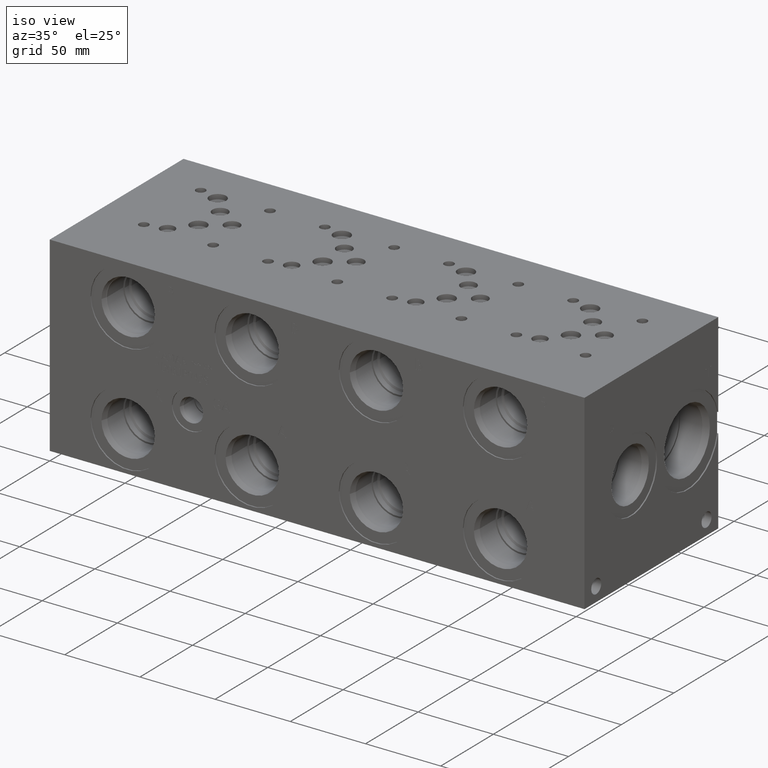
[diagram: clean part render]
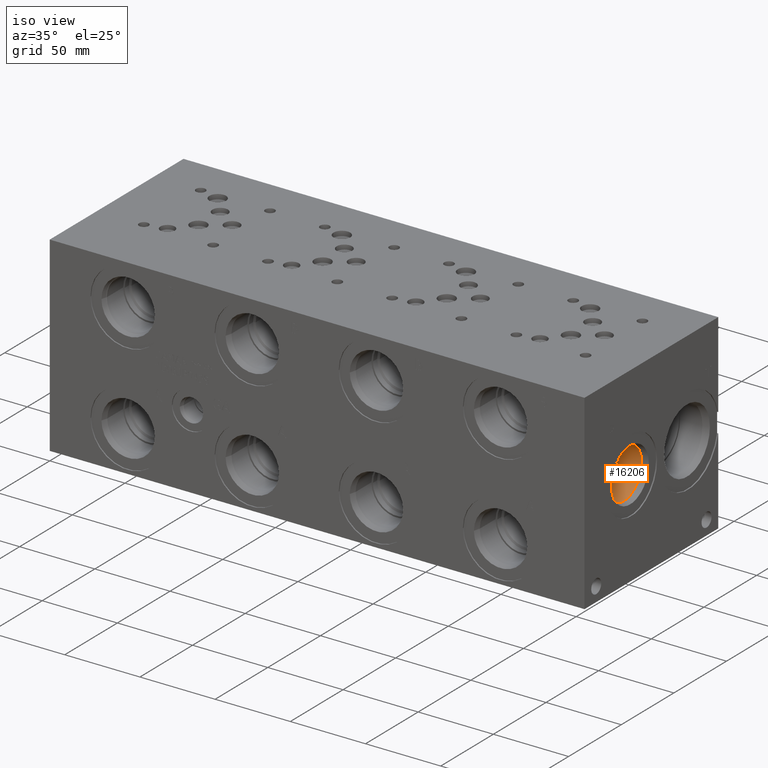
[diagram: same view with one face highlighted and labeled with its STEP entity id]
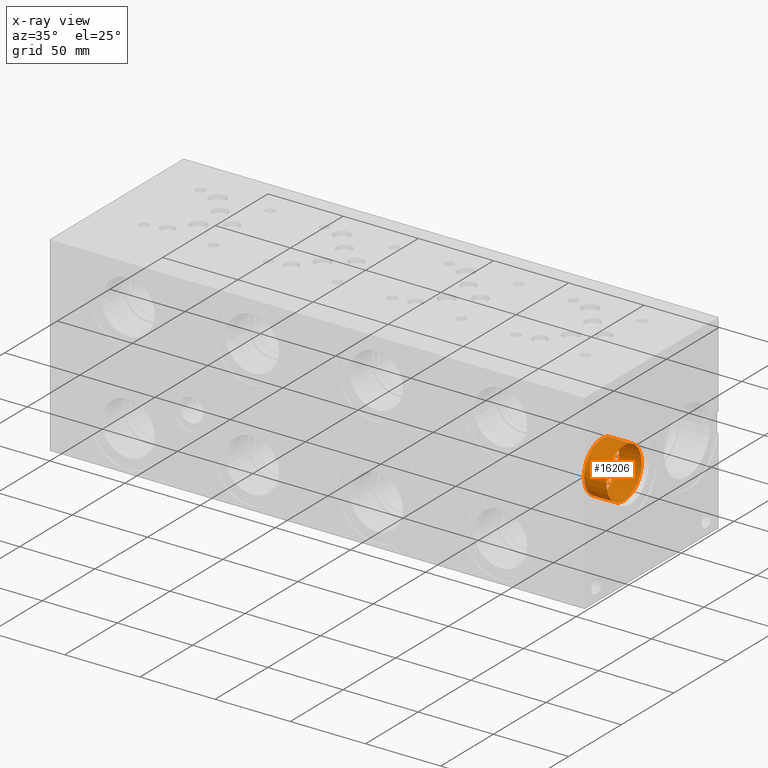
[diagram: x-ray of the same camera — body ghosted, the highlighted face saturated]
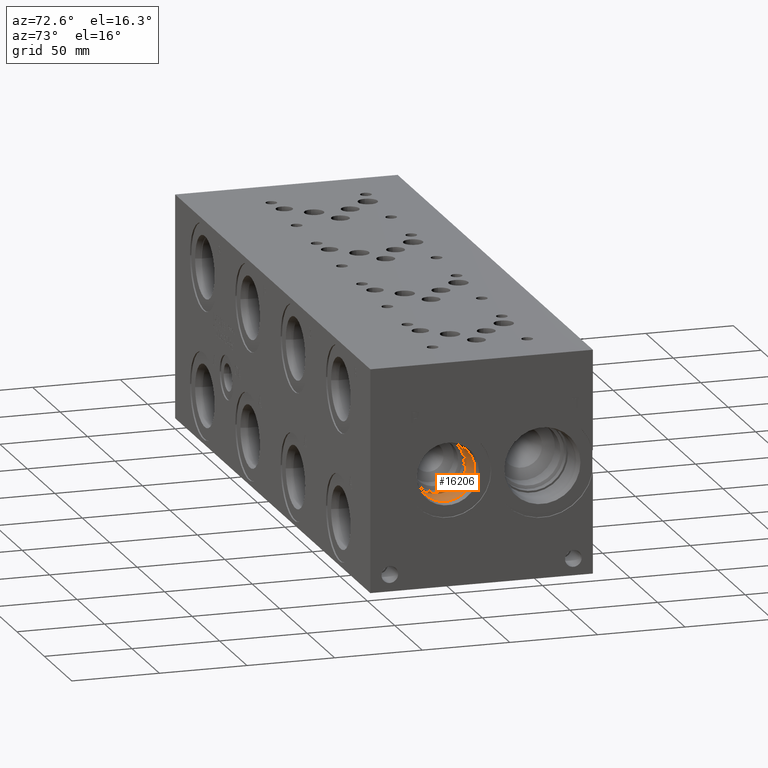
[diagram: same view with one face highlighted and labeled with its STEP entity id]
A machine part, iso view. The second image highlights one B-rep face of the part: STEP entity #16206.
The next image is the same camera in x-ray: the body ghosted, the highlighted face saturated — about 0% of this face is hidden behind the body in this view.
A second angle (auxiliary view) of the same face is appended — the face is thin or edge-on in the first view.
In plain terms, the highlighted cylindrical surface (bore or boss wall) has radius 16.6751 mm, axis along (1, 0, 0).
Its self-contained STEP definition (entity closure, byte-faithful):
#20=CYLINDRICAL_SURFACE('',#16953,16.6751);
#307=CIRCLE('',#16950,16.6751);
#308=CIRCLE('',#16951,16.6751);
#310=CIRCLE('',#16954,16.6751);
#2036=FACE_OUTER_BOUND('',#2975,.T.);
#2975=EDGE_LOOP('',(#13257,#13258,#13259,#13260,#13261));
#4531=LINE('',#27154,#5964);
#5964=VECTOR('',#19772,16.6751);
#7293=VERTEX_POINT('',#27145);
#7294=VERTEX_POINT('',#27146);
#7296=VERTEX_POINT('',#27152);
#9399=EDGE_CURVE('',#7293,#7294,#307,.T.);
#9400=EDGE_CURVE('',#7294,#7293,#308,.T.);
#9402=EDGE_CURVE('',#7296,#7296,#310,.T.);
#9403=EDGE_CURVE('',#7296,#7294,#4531,.T.);
#13257=ORIENTED_EDGE('',*,*,#9402,.F.);
#13258=ORIENTED_EDGE('',*,*,#9403,.T.);
#13259=ORIENTED_EDGE('',*,*,#9399,.F.);
#13260=ORIENTED_EDGE('',*,*,#9400,.F.);
#13261=ORIENTED_EDGE('',*,*,#9403,.F.);
#16206=ADVANCED_FACE('',(#2036),#20,.F.);
#16950=AXIS2_PLACEMENT_3D('',#27147,#19762,#19763);
#16951=AXIS2_PLACEMENT_3D('',#27148,#19764,#19765);
#16953=AXIS2_PLACEMENT_3D('',#27151,#19768,#19769);
#16954=AXIS2_PLACEMENT_3D('',#27153,#19770,#19771);
#19762=DIRECTION('center_axis',(1.,0.,0.));
#19763=DIRECTION('ref_axis',(0.,1.,0.));
#19764=DIRECTION('center_axis',(1.,0.,0.));
#19765=DIRECTION('ref_axis',(0.,1.,0.));
#19768=DIRECTION('center_axis',(1.,0.,0.));
#19769=DIRECTION('ref_axis',(0.,1.,0.));
#19770=DIRECTION('center_axis',(-1.,0.,0.));
#19771=DIRECTION('ref_axis',(0.,1.,0.));
#19772=DIRECTION('',(-1.,0.,0.));
#27145=CARTESIAN_POINT('',(335.7626,61.1251,63.5));
#27146=CARTESIAN_POINT('',(335.7626,27.7749,63.5));
#27147=CARTESIAN_POINT('Origin',(335.7626,44.45,63.5));
#27148=CARTESIAN_POINT('Origin',(335.7626,44.45,63.5));
#27151=CARTESIAN_POINT('Origin',(345.6813,44.45,63.5));
#27152=CARTESIAN_POINT('',(350.776321153229,27.7749,63.5));
#27153=CARTESIAN_POINT('Origin',(350.776321153229,44.45,63.5));
#27154=CARTESIAN_POINT('',(345.6813,27.7749,63.5));